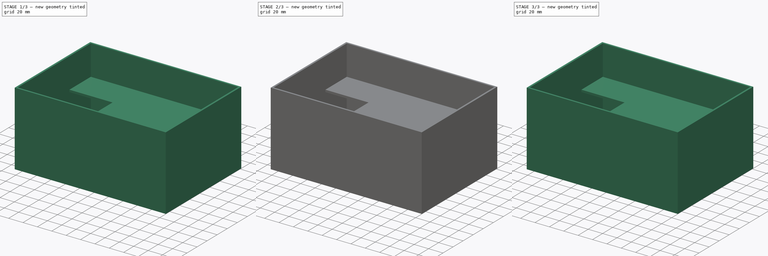
[diagram: build sequence overview — one tinted view per stage of 3, left to right]
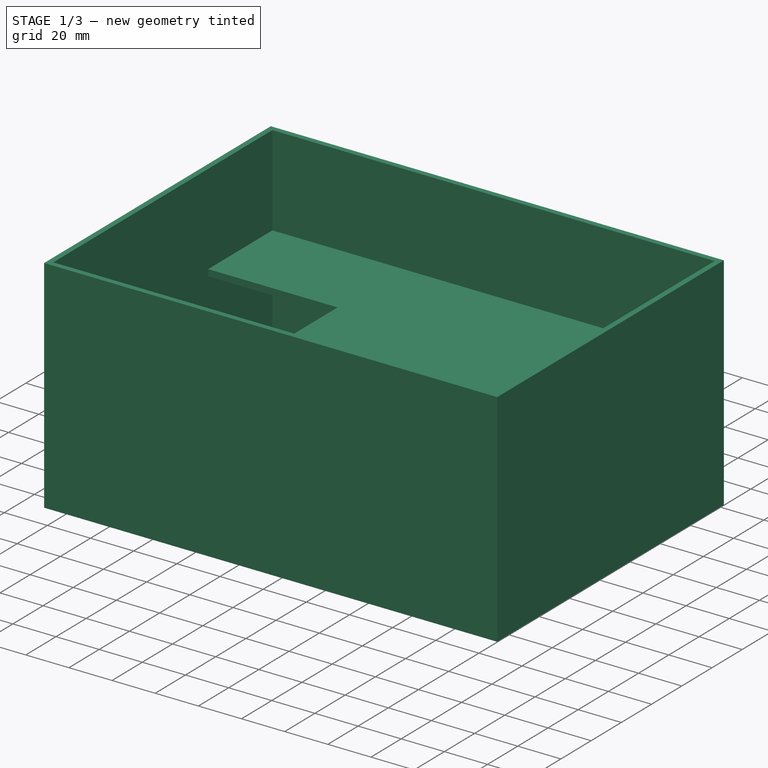
[diagram: stage 1 of 3 — iso view after this stage's code; geometry added in this stage tinted green]
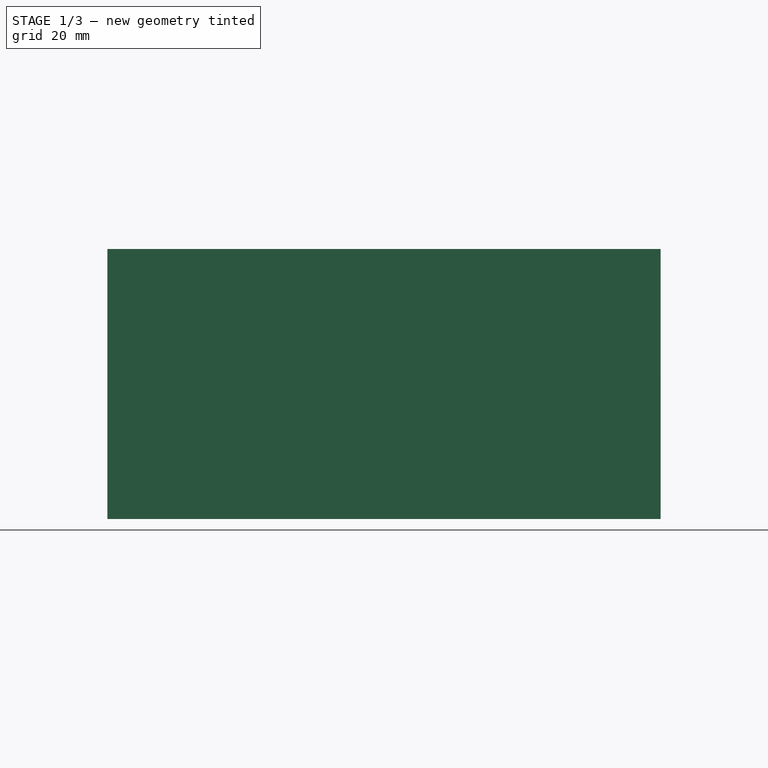
[diagram: stage 1 of 3 — front view after this stage's code; geometry added in this stage tinted green]
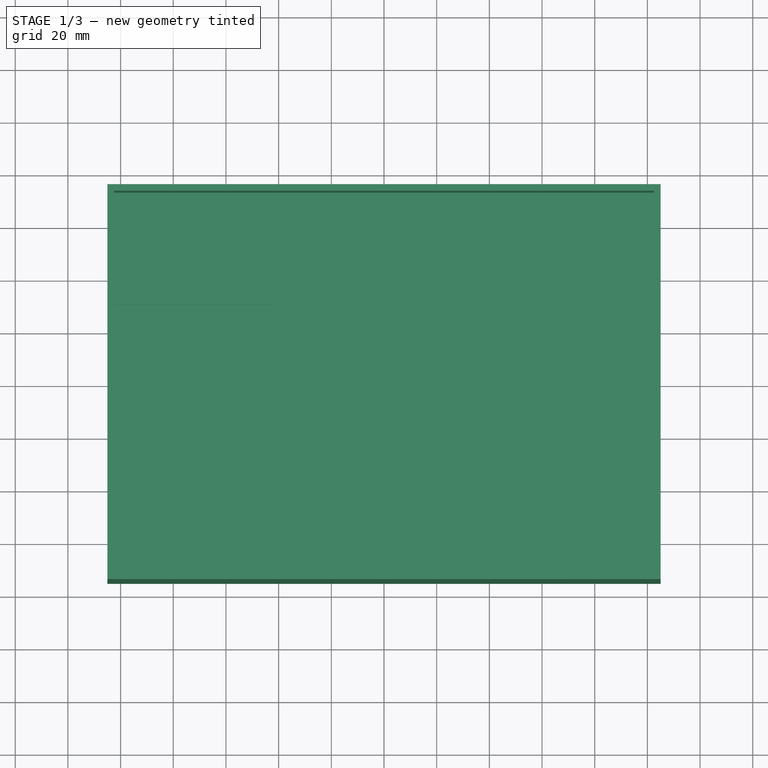
[diagram: stage 1 of 3 — top view after this stage's code; geometry added in this stage tinted green]
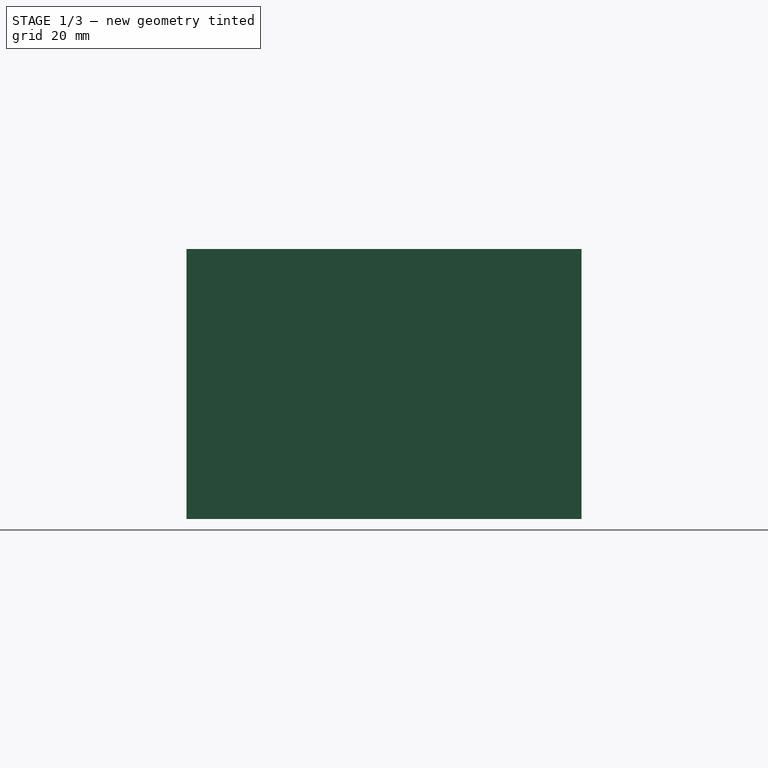
[diagram: stage 1 of 3 — right view after this stage's code; geometry added in this stage tinted green]
FCSTD DOCUMENT  (FreeCAD 0.16R6712 (Git))
Label: estructura
License: All rights reserved
LicenseURL: http://en.wikipedia.org/wiki/All_rights_reserved
objects: PartDesign::Pad×4, PartDesign::Body×1, Part::Feature×1, Sketcher::SketchObject×1, PartDesign::Pocket×1
note: 13 computed .brp shape members not serialized (recipe doc carries the construction recipe); baked Part::Feature solids carry a one-line shape summary decoded from their .brp

FEATURE [PartDesign::Pad] Pad003
  Length = 3
  Length2 = 100
  Type = 0
FEATURE [Part::Feature] Part__Feature  label="Fusion002"
  Placement = pos=(-30,-45,30) rot=(0,1,0;1.5708rad)
  shape: bbox 40 x 55 x 55 mm, 14 faces (baked)
FEATURE [Sketcher::SketchObject] Sketch
  Placement = pos=(105,0,0) rot=(0.57735,0.57735,0.57735;2.0944rad)
  Support = -> Body [Face7]
  sketch-geometry (30):
    g0: LineSegment [constr] StartX=-72.5 StartY=57.5 StartZ=0 EndX=-17.5 EndY=57.5 EndZ=0
    g1: LineSegment [constr] StartX=-17.5 StartY=57.5 StartZ=0 EndX=-17.5 EndY=2.5 EndZ=0
    g2: LineSegment [constr] StartX=-17.5 StartY=2.5 StartZ=0 EndX=-72.5 EndY=2.5 EndZ=0
    g3: LineSegment [constr] StartX=-72.5 StartY=2.5 StartZ=0 EndX=-72.5 EndY=57.5 EndZ=0
    g4: ArcOfCircle CenterX=-61 CenterY=50.3663 CenterZ=0 NormalX=0 NormalY=0 NormalZ=1 Radius=2 StartAngle=1.5708 EndAngle=4.71239
    g5: ArcOfCircle CenterX=-29 CenterY=50.3663 CenterZ=0 NormalX=0 NormalY=0 NormalZ=1 Radius=2 StartAngle=4.71239 EndAngle=7.85398
    g6: LineSegment StartX=-61 StartY=48.3663 StartZ=0 EndX=-29 EndY=48.3663 EndZ=0
    g7: LineSegment StartX=-61 StartY=52.3663 StartZ=0 EndX=-29 EndY=52.3663 EndZ=0
    g8: Circle [constr] CenterX=-45 CenterY=30 CenterZ=0 NormalX=0 NormalY=0 NormalZ=1 Radius=27.5
    g9: ArcOfCircle CenterX=-66.5 CenterY=45.1464 CenterZ=0 NormalX=0 NormalY=0 NormalZ=1 Radius=2 StartAngle=1.5708 EndAngle=4.71239
    g10: ArcOfCircle CenterX=-23.5 CenterY=45.1464 CenterZ=0 NormalX=0 NormalY=0 NormalZ=1 Radius=2 StartAngle=4.71239 EndAngle=7.85398
    g11: LineSegment StartX=-66.5 StartY=43.1464 StartZ=0 EndX=-23.5 EndY=43.1464 EndZ=0
    g12: LineSegment StartX=-66.5 StartY=47.1464 StartZ=0 EndX=-23.5 EndY=47.1464 EndZ=0
    g13: LineSegment [constr] StartX=-72.5 StartY=30 StartZ=0 EndX=-17.5 EndY=30 EndZ=0
    g14: ArcOfCircle CenterX=-70 CenterY=39.4564 CenterZ=0 NormalX=0 NormalY=0 NormalZ=1 Radius=2 StartAngle=1.5708 EndAngle=4.71239
    g15: ArcOfCircle CenterX=-20 CenterY=39.4564 CenterZ=0 NormalX=0 NormalY=0 NormalZ=1 Radius=2 StartAngle=4.71239 EndAngle=7.85398
    g16: LineSegment StartX=-70 StartY=37.4564 StartZ=0 EndX=-20 EndY=37.4564 EndZ=0
    g17: LineSegment StartX=-70 StartY=41.4564 StartZ=0 EndX=-20 EndY=41.4564 EndZ=0
    g18: ArcOfCircle CenterX=-70 CenterY=20.5436 CenterZ=0 NormalX=0 NormalY=0 NormalZ=1 Radius=2 StartAngle=1.5708 EndAngle=4.71239
    g19: ArcOfCircle CenterX=-20 CenterY=20.5436 CenterZ=0 NormalX=0 NormalY=0 NormalZ=1 Radius=2 StartAngle=4.71239 EndAngle=7.85398
    g20: LineSegment StartX=-70 StartY=18.5436 StartZ=0 EndX=-20 EndY=18.5436 EndZ=0
    g21: LineSegment StartX=-70 StartY=22.5436 StartZ=0 EndX=-20 EndY=22.5436 EndZ=0
    g22: ArcOfCircle CenterX=-66.5 CenterY=14.8536 CenterZ=0 NormalX=0 NormalY=0 NormalZ=1 Radius=2 StartAngle=1.5708 EndAngle=4.71239
    g23: ArcOfCircle CenterX=-23.5 CenterY=14.8536 CenterZ=0 NormalX=0 NormalY=0 NormalZ=1 Radius=2 StartAngle=4.71239 EndAngle=7.85398
    g24: LineSegment StartX=-66.5 StartY=12.8536 StartZ=0 EndX=-23.5 EndY=12.8536 EndZ=0
    g25: LineSegment StartX=-66.5 StartY=16.8536 StartZ=0 EndX=-23.5 EndY=16.8536 EndZ=0
    g26: ArcOfCircle CenterX=-61 CenterY=9.63373 CenterZ=0 NormalX=0 NormalY=0 NormalZ=1 Radius=2 StartAngle=1.5708 EndAngle=4.71239
    g27: ArcOfCircle CenterX=-29 CenterY=9.63373 CenterZ=0 NormalX=0 NormalY=0 NormalZ=1 Radius=2 StartAngle=4.71239 EndAngle=7.85398
    g28: LineSegment StartX=-61 StartY=7.63373 StartZ=0 EndX=-29 EndY=7.63373 EndZ=0
    g29: LineSegment StartX=-61 StartY=11.6337 StartZ=0 EndX=-29 EndY=11.6337 EndZ=0
  constraints (86):
    c: Coincident(g0,g1)
    c: Coincident(g1,g2)
    c: Coincident(g2,g3)
    c: Coincident(g3,g0)
    c: Horizontal(g0)
    c: Horizontal(g2)
    c: Vertical(g1)
    c: Vertical(g3)
    c: Equal(g1,g0)
    c: Equal(g0,g3)
    c: Equal(g3,g2)
    c: DistanceY(g-1,g1) = 2.5
    c: DistanceX(g1,g-1) = 17.5
    c: DistanceX(g2,g2) = 55
    c: Tangent(g4,g7) = 1.5708
    c: Tangent(g4,g6) = -1.5708
    c: Tangent(g6,g5) = -1.5708
    c: Tangent(g7,g5) = 1.5708
    c: Horizontal(g6)
    c: Equal(g4,g5)
    c: Equal(g7,g6)
    c: DistanceY(g5,g5) = 4
    c: DistanceY(g1,g8) = 27.5
    c: DistanceX(g8,g1) = 27.5
    c: Radius(g8) = 27.5
    c: PointOnObject(g4,g8)
    c: PointOnObject(g5,g8)
    c: DistanceX(g6,g6) = 32
    c: Tangent(g9,g12) = 1.5708
    c: Tangent(g9,g11) = -1.5708
    c: Tangent(g11,g10) = -1.5708
    c: Tangent(g12,g10) = 1.5708
    c: Horizontal(g11)
    c: Equal(g9,g10)
    c: Equal(g12,g11)
    c: PointOnObject(g9,g8)
    c: PointOnObject(g10,g8)
    c: DistanceX(g12,g12) = 43
    c: PointOnObject(g13,g3)
    c: PointOnObject(g13,g1)
    c: Horizontal(g13)
    c: PointOnObject(g8,g13)
    c: Tangent(g14,g17) = 1.5708
    c: Tangent(g14,g16) = -1.5708
    c: Tangent(g16,g15) = -1.5708
    c: Tangent(g17,g15) = 1.5708
    c: Horizontal(g16)
    c: Equal(g14,g15)
    c: Equal(g15,g10)
    c: Equal(g10,g5)
    c: PointOnObject(g14,g8)
    c: PointOnObject(g15,g8)
    c: DistanceX(g16,g16) = 50
    c: Tangent(g18,g21) = 1.5708
    c: Tangent(g18,g20) = -1.5708
    c: Tangent(g20,g19) = -1.5708
    c: Tangent(g21,g19) = 1.5708
    c: Horizontal(g20)
    c: Equal(g18,g19)
    c: Tangent(g22,g25) = 1.5708
    c: Tangent(g22,g24) = -1.5708
    c: Tangent(g24,g23) = -1.5708
    c: Tangent(g25,g23) = 1.5708
    c: Horizontal(g24)
    c: Equal(g22,g23)
    c: Tangent(g26,g29) = 1.5708
    c: Tangent(g26,g28) = -1.5708
    c: Tangent(g28,g27) = -1.5708
    c: Tangent(g29,g27) = 1.5708
    c: Horizontal(g28)
    c: Equal(g26,g27)
    c: Equal(g21,g20)
    c: Equal(g25,g24)
    c: Equal(g29,g28)
    c: Equal(g18,g22)
    c: Equal(g22,g26)
    c: Equal(g26,g4)
    c: PointOnObject(g26,g8)
    c: PointOnObject(g27,g8)
    c: DistanceX(g29,g29) = 32
    c: PointOnObject(g22,g8)
    c: PointOnObject(g23,g8)
    c: DistanceX(g24,g24) = 43
    c: PointOnObject(g18,g8)
    c: PointOnObject(g19,g8)
    c: DistanceX(g20,g20) = 50
FEATURE [PartDesign::Pocket] Pocket
  Length = 2.5
  Sketch = -> Sketch
  Type = 0
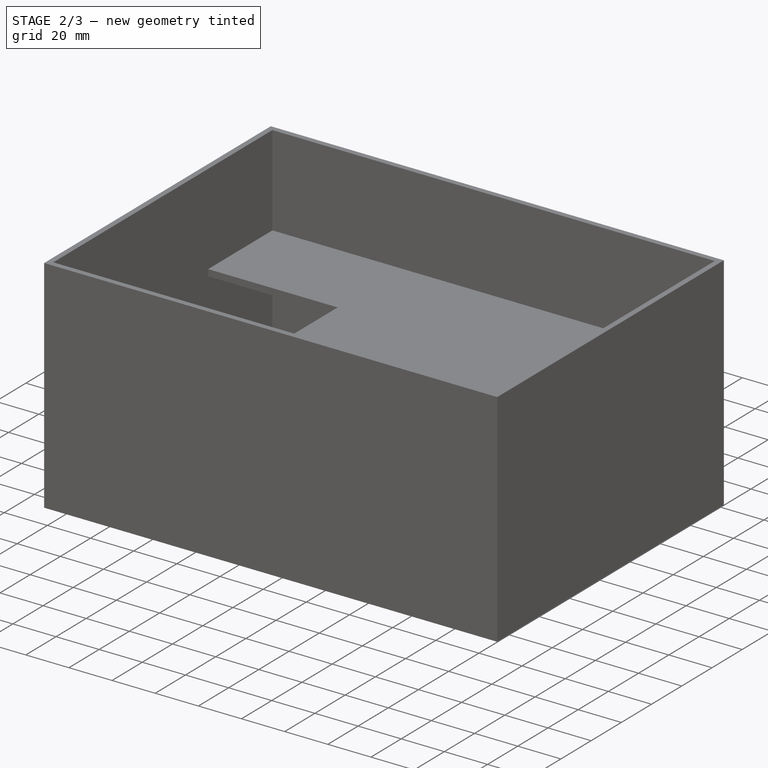
[diagram: stage 2 of 3 — iso view after this stage's code; geometry added in this stage tinted green]
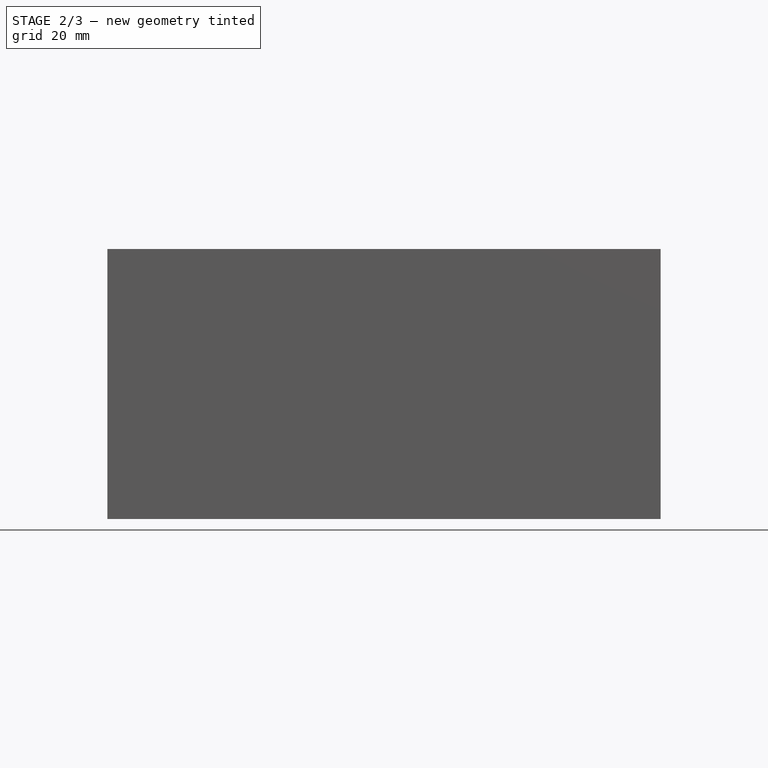
[diagram: stage 2 of 3 — front view after this stage's code; geometry added in this stage tinted green]
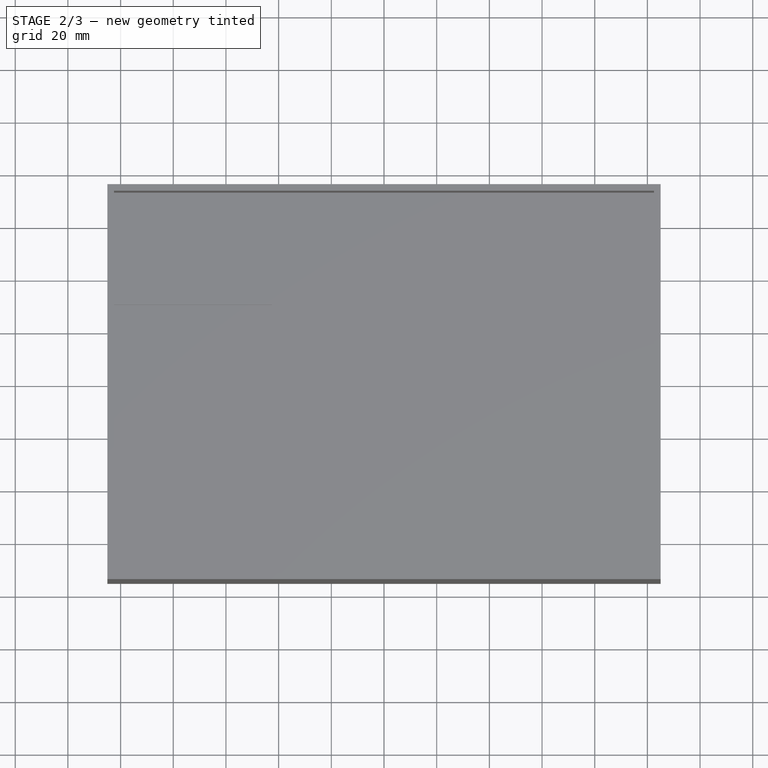
[diagram: stage 2 of 3 — top view after this stage's code; geometry added in this stage tinted green]
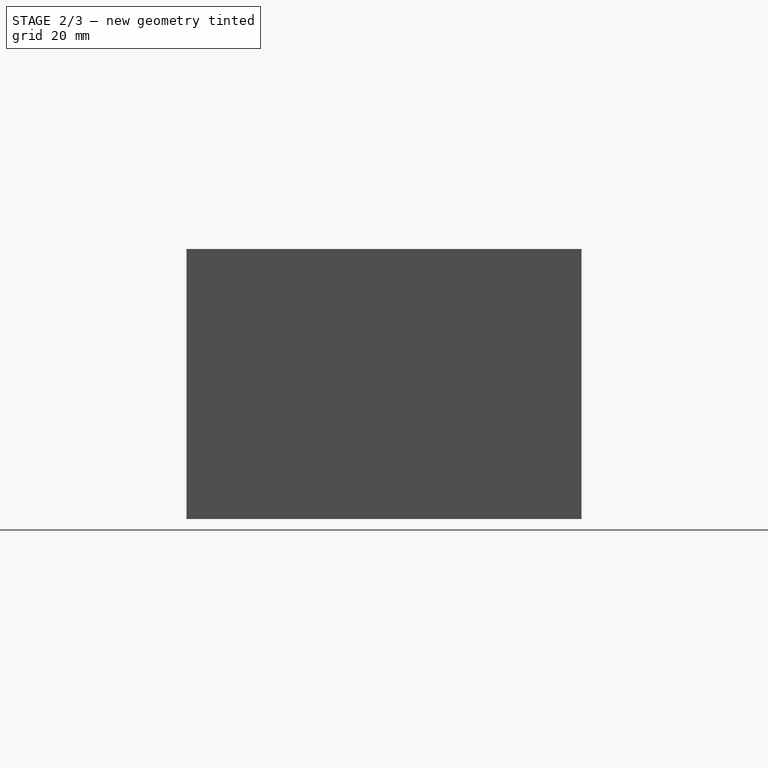
[diagram: stage 2 of 3 — right view after this stage's code; geometry added in this stage tinted green]
FEATURE [PartDesign::Pad] Pad002
  Length = 55
  Length2 = 100
  Type = 0
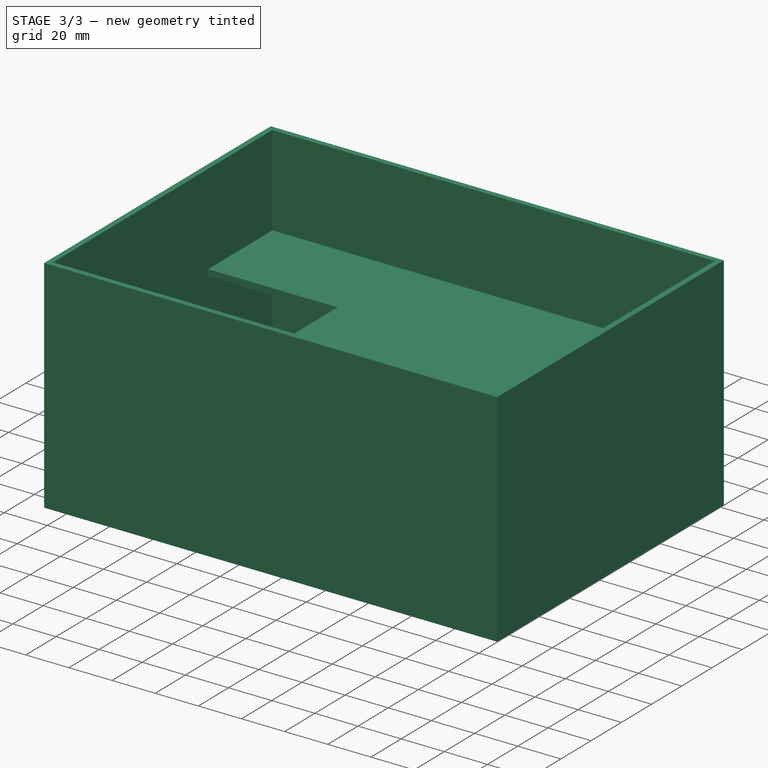
[diagram: stage 3 of 3 — iso view after this stage's code; geometry added in this stage tinted green]
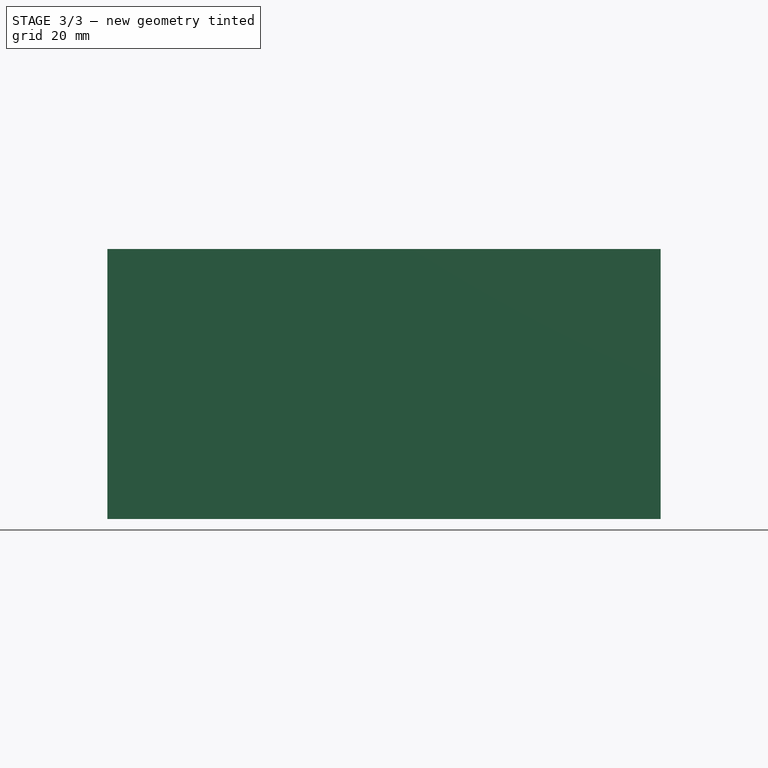
[diagram: stage 3 of 3 — front view after this stage's code; geometry added in this stage tinted green]
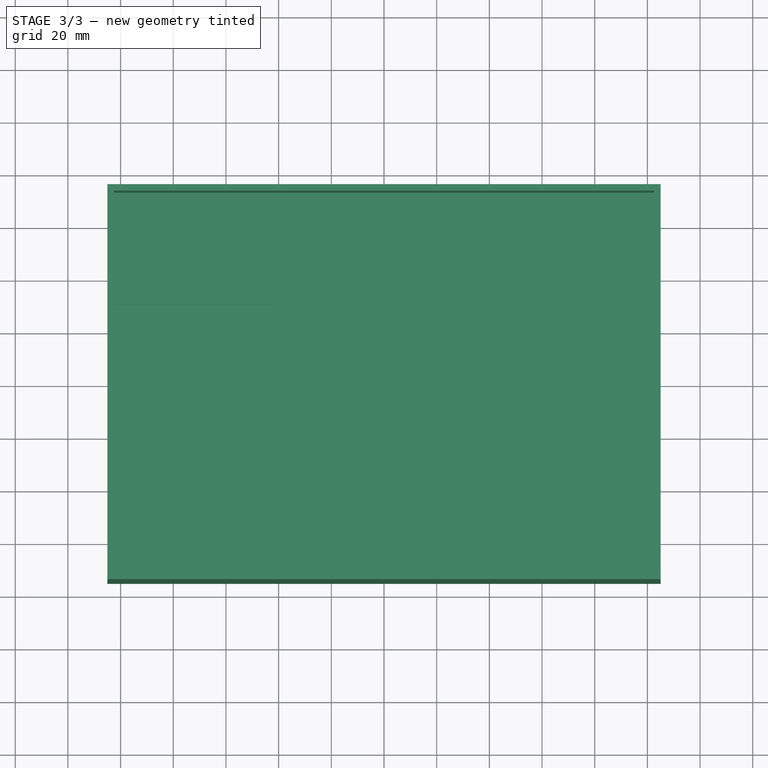
[diagram: stage 3 of 3 — top view after this stage's code; geometry added in this stage tinted green]
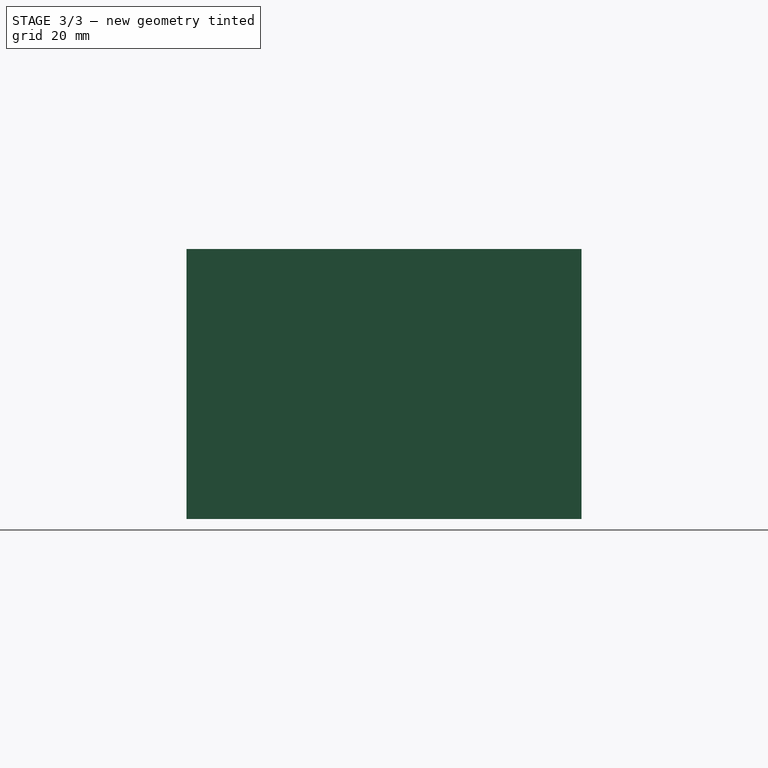
[diagram: stage 3 of 3 — right view after this stage's code; geometry added in this stage tinted green]
FEATURE [PartDesign::Body] Body
FEATURE [PartDesign::Pad] Pad
  Length = 2.5
  Length2 = 100
  Type = 0
FEATURE [PartDesign::Pad] Pad001
  Length = 100
  Length2 = 100
  Type = 0
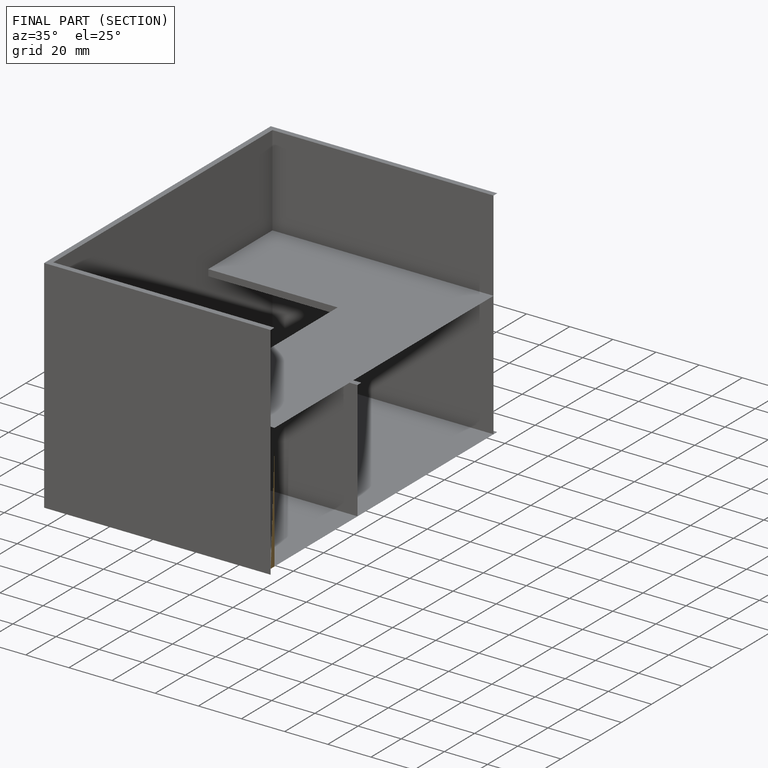
[diagram: finished part — half-section view (interior)]
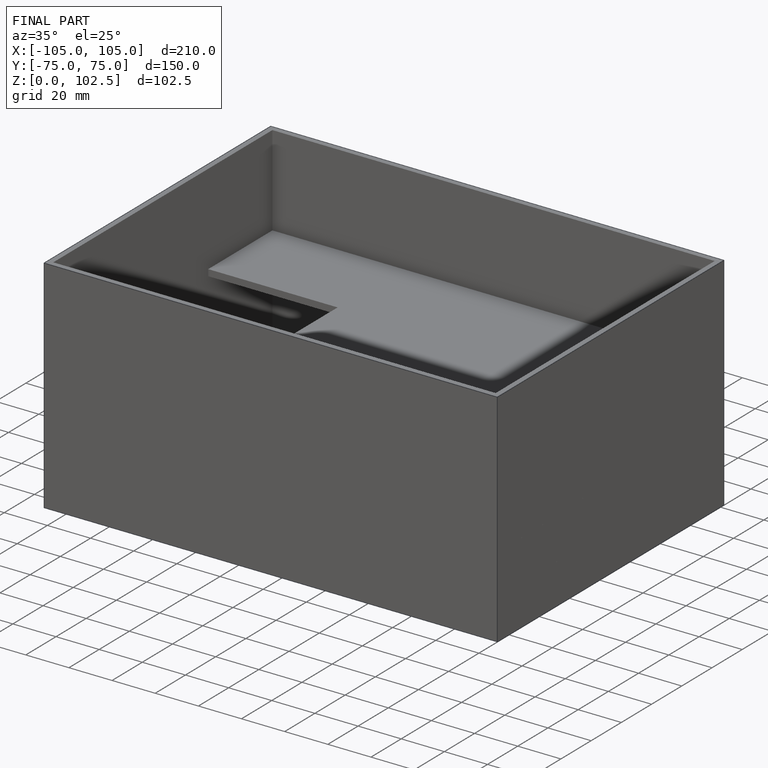
[diagram: finished part — iso view with bounding-box wireframe]
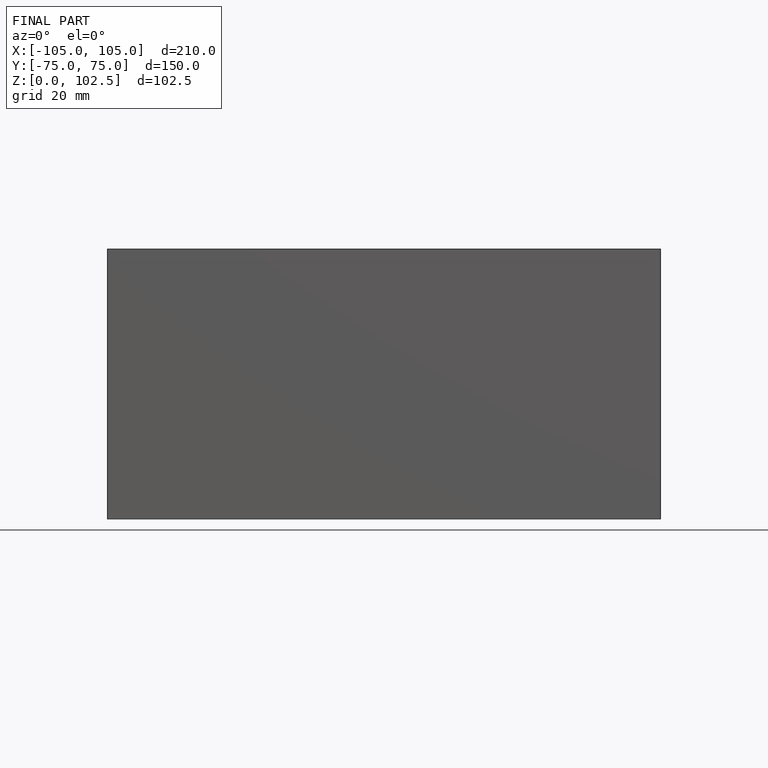
[diagram: finished part — front view with bounding-box wireframe]
